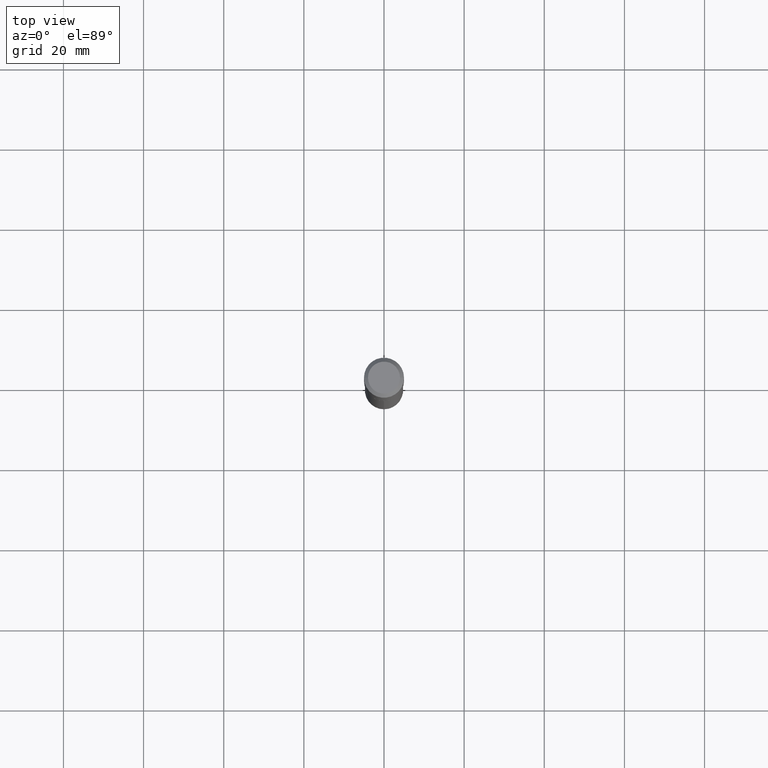
[diagram: clean part render]
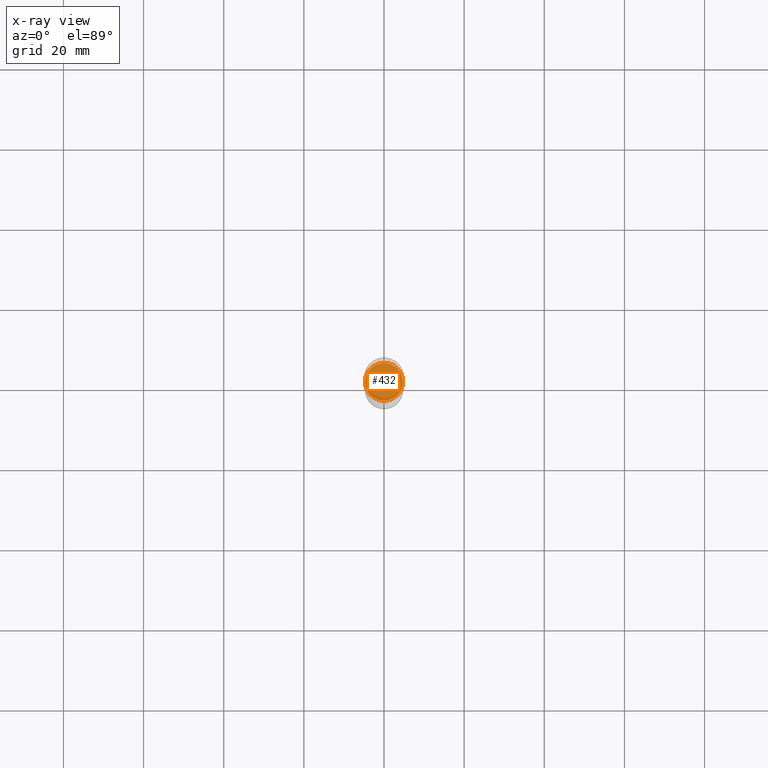
[diagram: x-ray — body ghosted, one internal face saturated and labeled with its STEP entity id]
A machine part, top view, then the same camera in x-ray: the body is ghosted and one INTERNAL B-rep face — a face not visible from any outside direction — is saturated and labeled: STEP entity #432.
In plain terms, the highlighted planar face has unit normal (-0, 0, 1).
Its self-contained STEP definition (entity closure, byte-faithful):
#29 = EDGE_CURVE ( 'NONE', #236, #406, #402, .T. ) ;
#76 = AXIS2_PLACEMENT_3D ( 'NONE', #290, #179, #376 ) ;
#79 = CARTESIAN_POINT ( 'NONE',  ( 5.899693494921640470E-29, -8.423198729959086830E-15, -2.412499999999999645 ) ) ;
#106 = ORIENTED_EDGE ( 'NONE', *, *, #430, .F. ) ;
#144 = CIRCLE ( 'NONE', #420, 0.1869999999999999996 ) ;
#155 = FACE_OUTER_BOUND ( 'NONE', #472, .T. ) ;
#163 = AXIS2_PLACEMENT_3D ( 'NONE', #79, #337, #191 ) ;
#177 = ORIENTED_EDGE ( 'NONE', *, *, #29, .F. ) ;
#179 = DIRECTION ( 'NONE',  ( -2.445468806185136597E-29, 3.491481338843145583E-15, 1.000000000000000000 ) ) ;
#191 = DIRECTION ( 'NONE',  ( 1.000000000000000000, -6.982962677686265922E-15, 4.876176775795935793E-29 ) ) ;
#204 = CARTESIAN_POINT ( 'NONE',  ( 5.899693494921640470E-29, -8.423198729959086830E-15, -2.412499999999999645 ) ) ;
#236 = VERTEX_POINT ( 'NONE', #415 ) ;
#290 = CARTESIAN_POINT ( 'NONE',  ( 5.899693494921640470E-29, -8.423198729959086830E-15, -2.412499999999999645 ) ) ;
#337 = DIRECTION ( 'NONE',  ( -2.438088387897960049E-29, 3.491481338843145188E-15, 1.000000000000000000 ) ) ;
#376 = DIRECTION ( 'NONE',  ( 1.000000000000000000, -6.982962677686265133E-15, 0.000000000000000000 ) ) ;
#402 = CIRCLE ( 'NONE', #76, 0.1869999999999999996 ) ;
#406 = VERTEX_POINT ( 'NONE', #429 ) ;
#413 = PLANE ( 'NONE',  #163 ) ;
#415 = CARTESIAN_POINT ( 'NONE',  ( -0.1869999999999999996, -7.091834586913589468E-15, -2.412499999999999645 ) ) ;
#417 = DIRECTION ( 'NONE',  ( 1.000000000000000000, -6.982962677686265133E-15, 0.000000000000000000 ) ) ;
#420 = AXIS2_PLACEMENT_3D ( 'NONE', #204, #450, #417 ) ;
#429 = CARTESIAN_POINT ( 'NONE',  ( 0.1869999999999999996, -9.729012750686418831E-15, -2.412499999999999645 ) ) ;
#430 = EDGE_CURVE ( 'NONE', #406, #236, #144, .T. ) ;
#432 = ADVANCED_FACE ( 'NONE', ( #155 ), #413, .F. ) ;
#450 = DIRECTION ( 'NONE',  ( -2.445468806185136597E-29, 3.491481338843145583E-15, 1.000000000000000000 ) ) ;
#472 = EDGE_LOOP ( 'NONE', ( #106, #177 ) ) ;